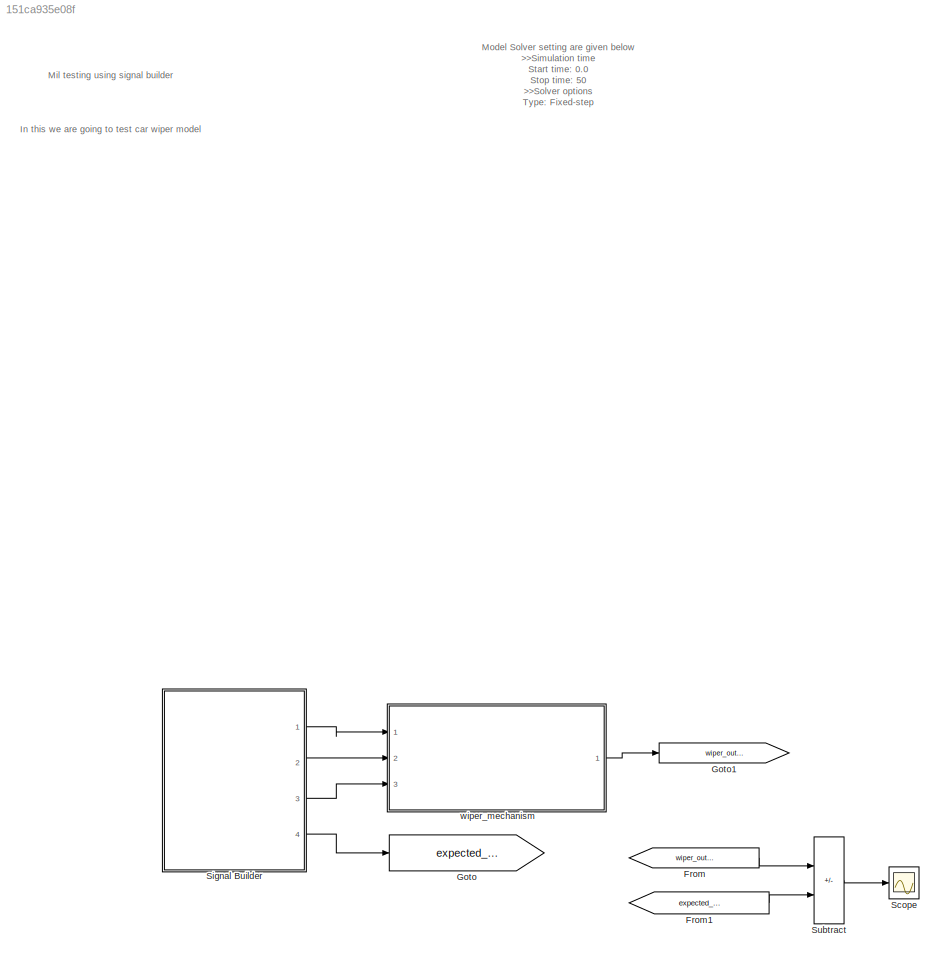
MODEL slx_151ca935e08f
KIND model
CONFIG AbsTol = auto
CONFIG EnableMultiTasking = off
CONFIG FixedStep = 0.1
CONFIG MaxStep = auto
CONFIG MinStep = auto
CONFIG RelTol = 1e-3
CONFIG SampleTimeConstraint = Unconstrained
CONFIG Solver = FixedStepDiscrete
CONFIG SolverName = FixedStepDiscrete
CONFIG StartTime = 0.0
CONFIG StopTime = 0.5
BLOCK [From] From
  GotoTag = wiper_out_put
BLOCK [From] From1
  GotoTag = expected_out_put
BLOCK [Goto] Goto
  GotoTag = expected_out_put
BLOCK [Goto] Goto1
  GotoTag = wiper_out_put
BLOCK [Scope] Scope
  Floating = off
  NumInputPorts = 1
  Ports = [1]
  ScopeSpecificationString = Simulink.scopes.TimeScopeBlockCfg('CurrentConfiguration', extmgr.ConfigurationSet(extmgr.Configuration('Core','General UI',true),extmgr.Configuration('Core','Source UI',true),extmgr.Configuration('Sources','WiredSimulink',true),extmgr.Configuration('Visuals','Time Domain',true,'SerializedDisplays',{struct('MinYLimReal','-1.00000','MaxYLimReal','1.00000','YLabelReal','','MinYLimMag','0.00000','MaxY...<+1357ch>
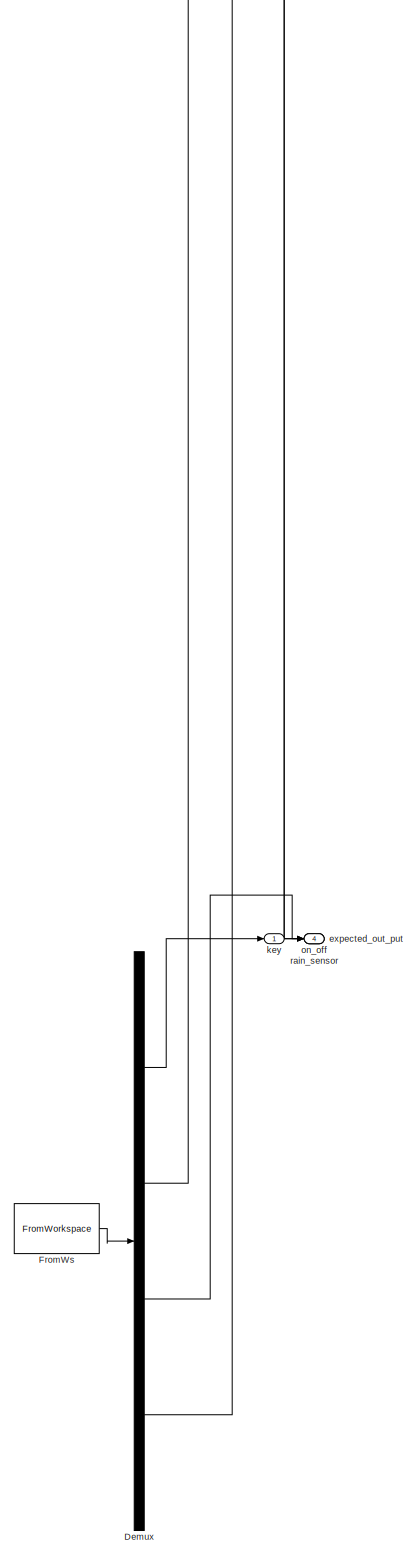
[diagram: Signal Builder - part 1/1, full width, bottom band]
BLOCK [SubSystem] Signal Builder
  ClipboardFcn = sigbuilder_block('clipboard');
  CloseFcn = sigbuilder_block('close');
  ContinueFcn = sigbuilder_block('continue');
  CopyFcn = sigbuilder_block('copy');
  DeleteFcn = sigbuilder_block('delete');
  LoadFcn = sigbuilder_block('load',[5.4 36 1141.2 516.6 ]);
  MaskHideContents = on
  ModelCloseFcn = sigbuilder_block('modelClose');
  NameChangeFcn = sigbuilder_block('namechange');
  OpenFcn = sigbuilder_block('open',[0 36 1152 555.6 ]);
  PauseFcn = sigbuilder_block('pause');
  Ports = [0, 4]
  PreSaveFcn = sigbuilder_block('preSave');
  RequestExecContextInheritance = off
  StartFcn = sigbuilder_block('start');
  StopFcn = sigbuilder_block('stop');
  Tag = STV Subsys
BLOCK [Demux] Signal Builder/Demux
  DisplayOption = none
  Ports = [1, 4]
  Tag = STV Demux
BLOCK [FromWorkspace] Signal Builder/FromWs
  Tag = STV FromWs
  VariableName = tuvar
BLOCK [Outport] Signal Builder/expected_out_put
  Port = 4
  Tag = STV Outport
BLOCK [Outport] Signal Builder/key
  Tag = STV Outport
BLOCK [Outport] Signal Builder/on_off
  Port = 2
  Tag = STV Outport
BLOCK [Outport] Signal Builder/rain_sensor
  Port = 3
  Tag = STV Outport
BLOCK [Sum] Subtract
  IconShape = rectangular
  Inputs = +-
  Ports = [2, 1]
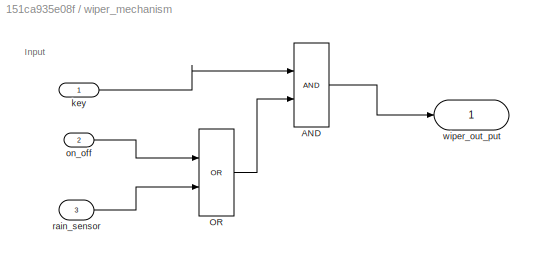
BLOCK [SubSystem] wiper_mechanism
  Ports = [3, 1]
  RequestExecContextInheritance = off
BLOCK [Logic] wiper_mechanism/AND
  AllPortsSameDT = off
  OutDataTypeStr = boolean
  Ports = [2, 1]
BLOCK [Logic] wiper_mechanism/OR
  AllPortsSameDT = off
  Operator = OR
  OutDataTypeStr = boolean
  Ports = [2, 1]
BLOCK [Inport] wiper_mechanism/key
BLOCK [Inport] wiper_mechanism/on_off
  Port = 2
BLOCK [Inport] wiper_mechanism/rain_sensor
  Port = 3
BLOCK [Outport] wiper_mechanism/wiper_out_put
ANNOTATION (root): In this we are going to test car wiper model
ANNOTATION (root): Mil testing using signal builder
ANNOTATION (root): Model Solver setting are given below >>Simulation time Start time: 0.0 Stop time: 50 >>Solver options Type: Fixed-step Solver: discrete(no continuoes states) >>Additional options Fixed-step size: 1
ANNOTATION wiper_mechanism: Input
LINE From1:1 -> Subtract:2
LINE From:1 -> Subtract:1
LINE Signal Builder:1 -> wiper_mechanism:1
LINE Signal Builder:2 -> wiper_mechanism:2
LINE Signal Builder:3 -> wiper_mechanism:3
LINE Signal Builder:4 -> Goto:1
LINE Subtract:1 -> Scope:1
LINE wiper_mechanism/AND:1 -> wiper_mechanism/wiper_out_put:1
LINE wiper_mechanism/OR:1 -> wiper_mechanism/AND:2
LINE wiper_mechanism/key:1 -> wiper_mechanism/AND:1
LINE wiper_mechanism/on_off:1 -> wiper_mechanism/OR:1
LINE wiper_mechanism/rain_sensor:1 -> wiper_mechanism/OR:2
LINE wiper_mechanism:1 -> Goto1:1
